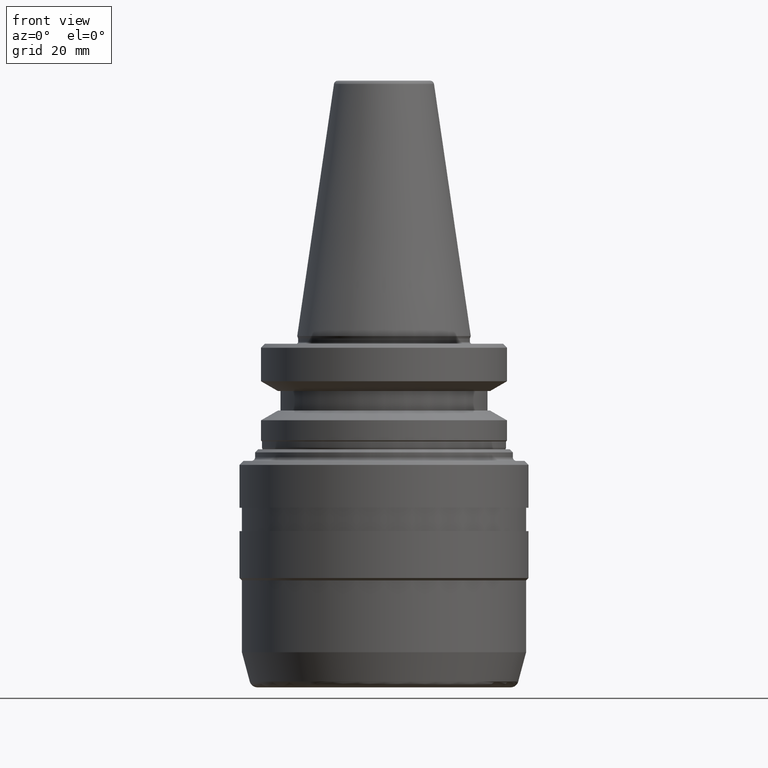
[diagram: clean part render]
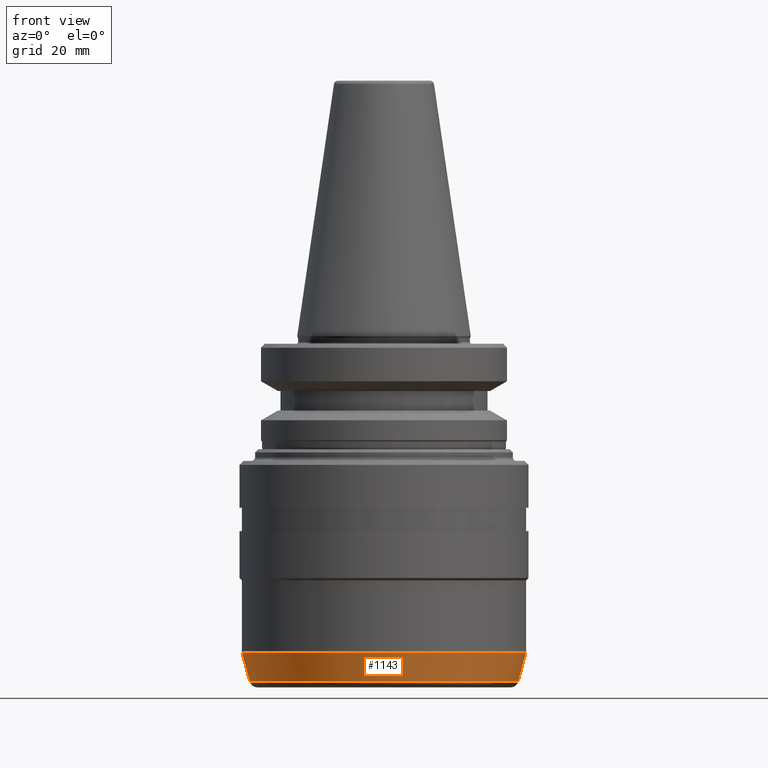
[diagram: same view with one face highlighted and labeled with its STEP entity id]
A machine part, front view. The second image highlights one B-rep face of the part: STEP entity #1143.
In plain terms, the highlighted conical surface has half-angle 15 deg.
Its self-contained STEP definition (entity closure, byte-faithful):
#84 = VECTOR ( 'NONE', #813, 1000.000000000000000 ) ;
#188 = EDGE_CURVE ( 'NONE', #845, #1252, #1443, .T. ) ;
#198 = DIRECTION ( 'NONE',  ( 1.000000000000000000, 0.0000000000000000000, 0.0000000000000000000 ) ) ;
#275 = AXIS2_PLACEMENT_3D ( 'NONE', #1106, #1491, #937 ) ;
#297 = EDGE_CURVE ( 'NONE', #1568, #799, #1400, .T. ) ;
#342 = DIRECTION ( 'NONE',  ( -0.0000000000000000000, -0.0000000000000000000, 1.000000000000000000 ) ) ;
#412 = AXIS2_PLACEMENT_3D ( 'NONE', #853, #342, #421 ) ;
#421 = DIRECTION ( 'NONE',  ( 1.000000000000000000, 0.0000000000000000000, 0.0000000000000000000 ) ) ;
#446 = ORIENTED_EDGE ( 'NONE', *, *, #862, .T. ) ;
#589 = CARTESIAN_POINT ( 'NONE',  ( -34.38565494474038800, 4.211028226466167800E-015, -88.51763809020597800 ) ) ;
#685 = CONICAL_SURFACE ( 'NONE', #1329, 36.39999999999798800, 0.2617993877991501300 ) ;
#706 = ORIENTED_EDGE ( 'NONE', *, *, #745, .F. ) ;
#745 = EDGE_CURVE ( 'NONE', #1568, #845, #1375, .T. ) ;
#783 = LINE ( 'NONE', #1490, #84 ) ;
#786 = CARTESIAN_POINT ( 'NONE',  ( 34.38565494474038800, 0.0000000000000000000, -88.51763809020597800 ) ) ;
#799 = VERTEX_POINT ( 'NONE', #786 ) ;
#813 = DIRECTION ( 'NONE',  ( 0.2588190451025214100, 0.0000000000000000000, 0.9659258262890680900 ) ) ;
#842 = DIRECTION ( 'NONE',  ( -0.2588190451025214100, 3.169619151431773000E-017, 0.9659258262890680900 ) ) ;
#845 = VERTEX_POINT ( 'NONE', #1013 ) ;
#853 = CARTESIAN_POINT ( 'NONE',  ( 0.0000000000000000000, 0.0000000000000000000, -88.51763809020597800 ) ) ;
#862 = EDGE_CURVE ( 'NONE', #799, #1252, #783, .T. ) ;
#937 = DIRECTION ( 'NONE',  ( 1.000000000000000000, 0.0000000000000000000, 0.0000000000000000000 ) ) ;
#978 = DIRECTION ( 'NONE',  ( -0.0000000000000000000, -0.0000000000000000000, 1.000000000000000000 ) ) ;
#982 = CARTESIAN_POINT ( 'NONE',  ( 0.0000000000000000000, 0.0000000000000000000, -81.00000000000928000 ) ) ;
#1013 = CARTESIAN_POINT ( 'NONE',  ( -36.39999999999798800, 4.457714348896118900E-015, -81.00000000000928000 ) ) ;
#1056 = EDGE_LOOP ( 'NONE', ( #706, #1250, #446, #1265 ) ) ;
#1065 = VECTOR ( 'NONE', #842, 1000.000000000000000 ) ;
#1106 = CARTESIAN_POINT ( 'NONE',  ( 0.0000000000000000000, 0.0000000000000000000, -81.00000000000928000 ) ) ;
#1143 = ADVANCED_FACE ( 'NONE', ( #1370 ), #685, .T. ) ;
#1250 = ORIENTED_EDGE ( 'NONE', *, *, #297, .T. ) ;
#1252 = VERTEX_POINT ( 'NONE', #1462 ) ;
#1265 = ORIENTED_EDGE ( 'NONE', *, *, #188, .F. ) ;
#1292 = CARTESIAN_POINT ( 'NONE',  ( -36.39999999999798800, 4.457714348896118900E-015, -81.00000000000928000 ) ) ;
#1329 = AXIS2_PLACEMENT_3D ( 'NONE', #982, #978, #198 ) ;
#1370 = FACE_OUTER_BOUND ( 'NONE', #1056, .T. ) ;
#1375 = LINE ( 'NONE', #1292, #1065 ) ;
#1400 = CIRCLE ( 'NONE', #412, 34.38565494474033100 ) ;
#1443 = CIRCLE ( 'NONE', #275, 36.39999999999798800 ) ;
#1462 = CARTESIAN_POINT ( 'NONE',  ( 36.39999999999798800, 0.0000000000000000000, -81.00000000000928000 ) ) ;
#1490 = CARTESIAN_POINT ( 'NONE',  ( 36.39999999999798800, 0.0000000000000000000, -81.00000000000928000 ) ) ;
#1491 = DIRECTION ( 'NONE',  ( -0.0000000000000000000, -0.0000000000000000000, 1.000000000000000000 ) ) ;
#1568 = VERTEX_POINT ( 'NONE', #589 ) ;